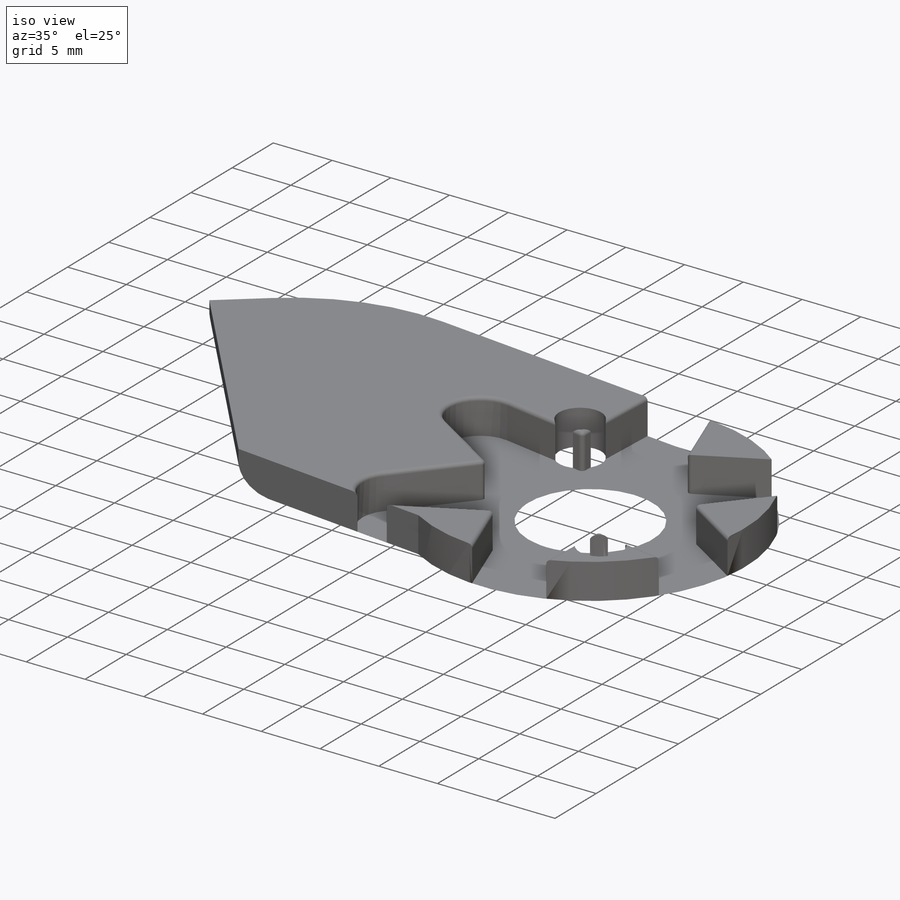
[diagram: iso view]
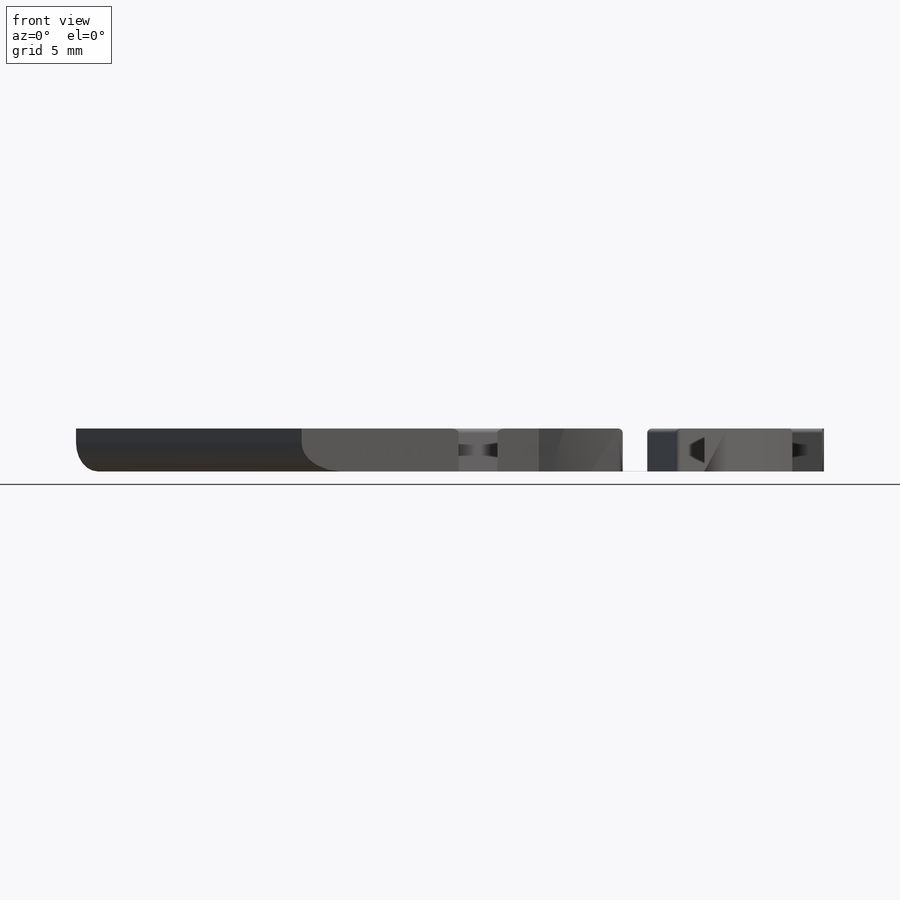
[diagram: front view]
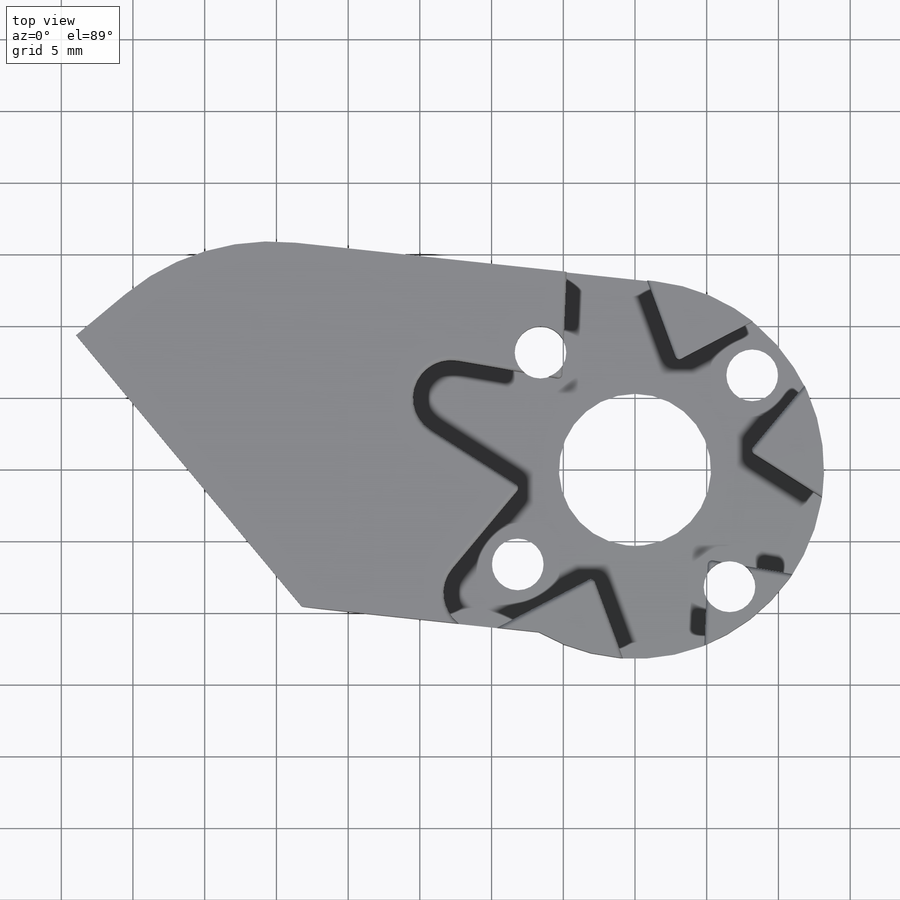
[diagram: top view]
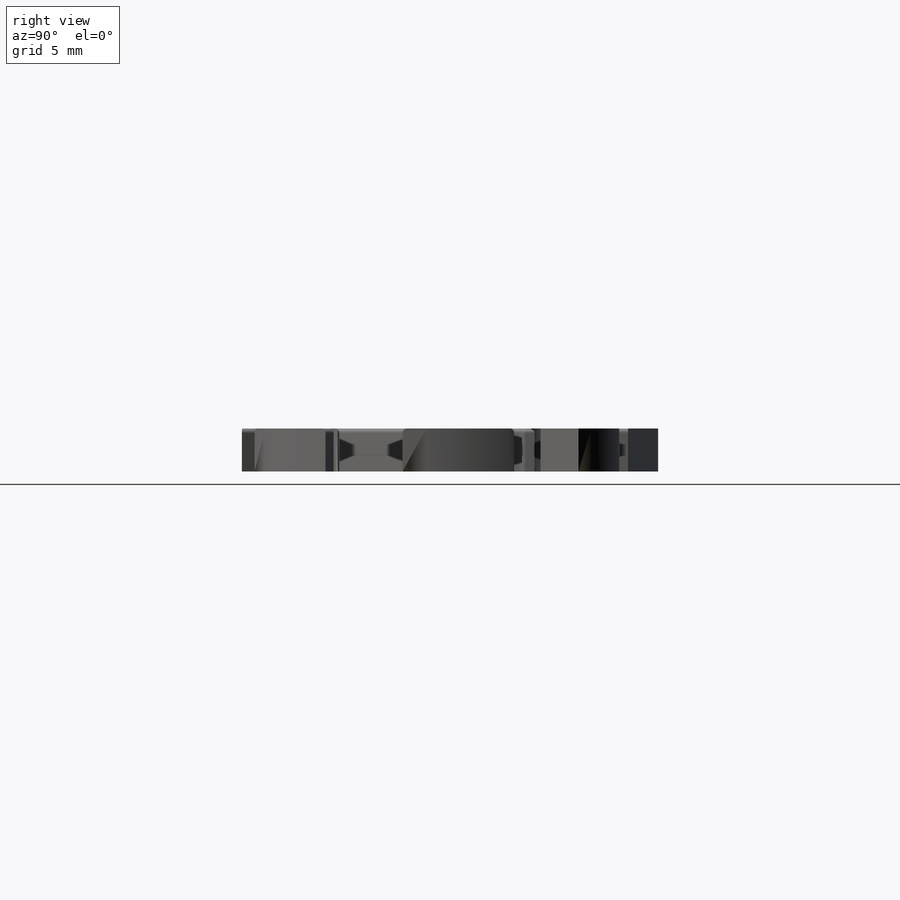
[diagram: right view]
SOLIDWORKS PART (.sldprt)
format: sldprt  version: not decoded by parser v0  size: 351,744 bytes
history: native  units: mm
features: plane x3, sketch x3, cut_extrude x2, fillet x2, material x1, extrude x1, pattern_circular x1 (+8 scaffold rows collapsed)
feature tree (21):
  scaffold x8  (default folders/planes/origin — collapsed)
  material  "Material <sin especificar>"
  plane  "Alzado"
  plane  "Planta"
  plane  "Vista lateral"
  sketch  "Croquis1"  dims[c1.D1=26.36mm c1.D3=10.6mm c1.D2=24.0mm c1.D4=25.37mm c1.D5=~27.289462mm c2.D5=4.2478deg c3.D5=25.18mm c3.D6=~8.676821mm c4.D6=~231.717213deg c5.D6=~27.859095mm c6.D6=134.15deg c7.D6=25.18mm c7.D5=~24.845559mm c8.D5=134.15deg c8.D6=25.18mm c8.D7=24.61mm]
  extrude  "Saliente-Extruir1"  Depth=3mm
  sketch  "Croquis2"  dims[c1.D1=16.2mm c1.D2=5.3mm c1.D4=32.8mm c1.D5=13.8mm c2.D5=50.26deg c3.D5=~10.611557mm c4.D5=135.85deg c5.D5=13.8mm c6.D5=~173.890732deg c7.D5=13.8mm c8.D5=51.11deg c9.D5=~13.721626mm c10.D5=45.0deg c10.D3=6.0]
  cut_extrude  "Cortar-Extruir2"  Depth=0.01mm
  fillet  "Redondeo1"  Radius=2mm
  fillet  "Redondeo2"  Radius=0.3mm
  sketch  "Croquis3"  dims[c1.D1=21.0mm c1.D2=3.6mm c1.D3=~9.410346mm c2.D3=50.26deg c3.D3=~8.074011mm c4.D3=135.85deg c5.D3=10.5mm c6.D3=51.11deg c7.D3=~8.290657mm c8.D3=45.0deg]
  cut_extrude  "Cortar-Extruir3"  Depth=10mm
  pattern_circular  "MatrizC1"  Count=4 Angle=360deg
decode coverage: 9 of 9 modeling features carry decoded parameters
note: ~ marks probable driven/reference dimensions
note: suppression state not decoded; provenance and decode notes live in map.json
